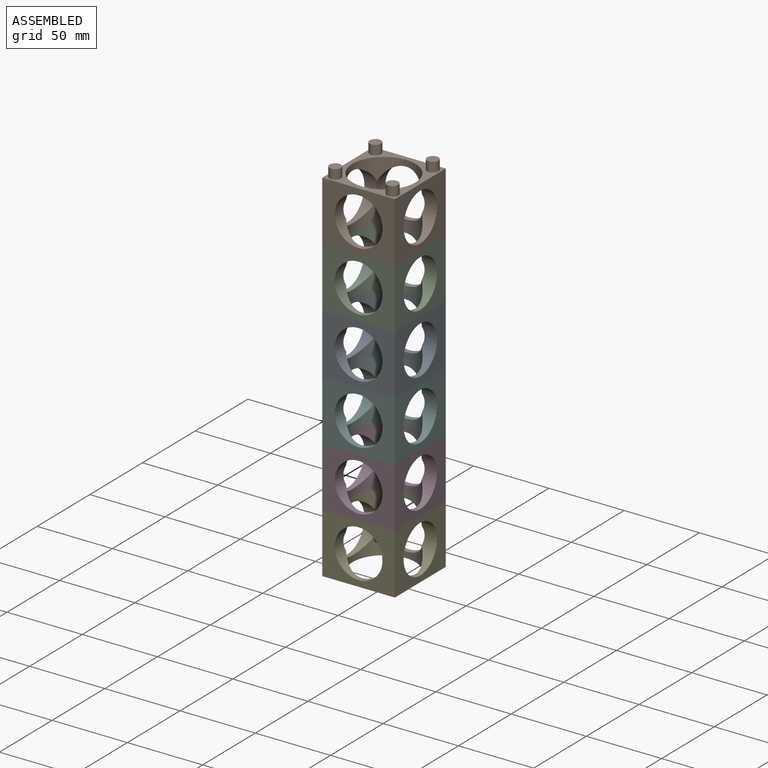
[diagram: assembled view]
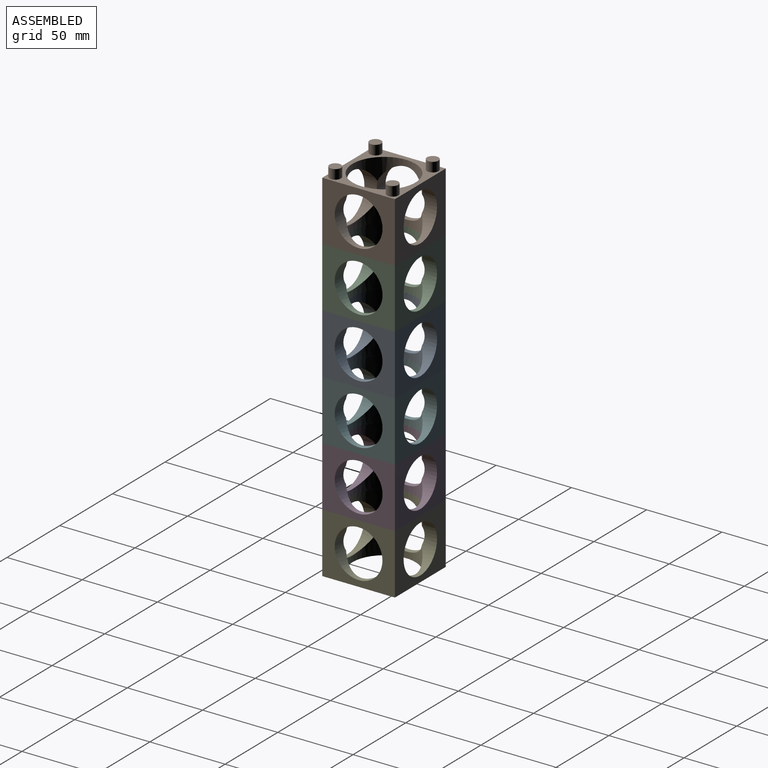
[diagram: assembled view, second angle]
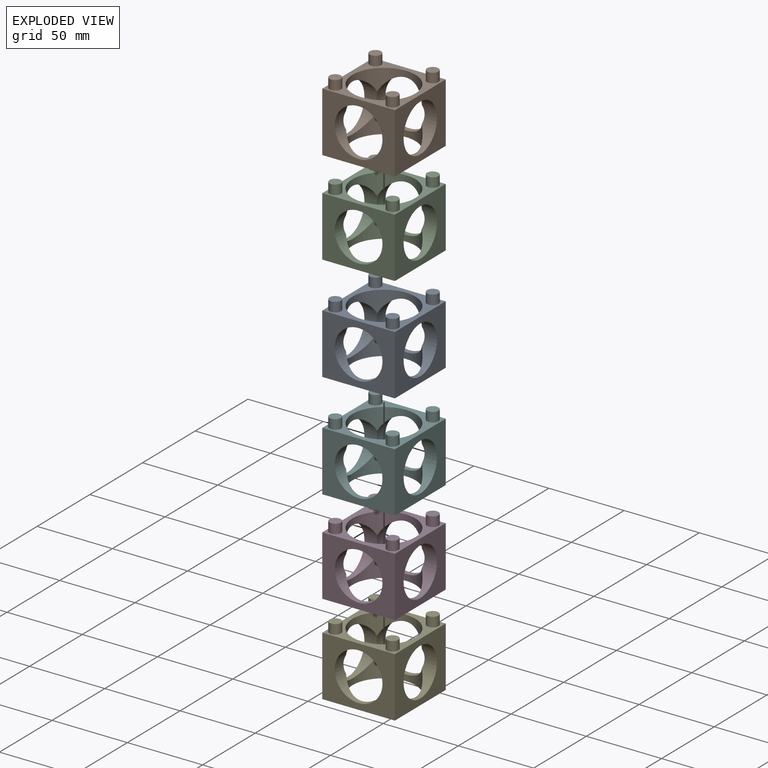
[diagram: exploded view]
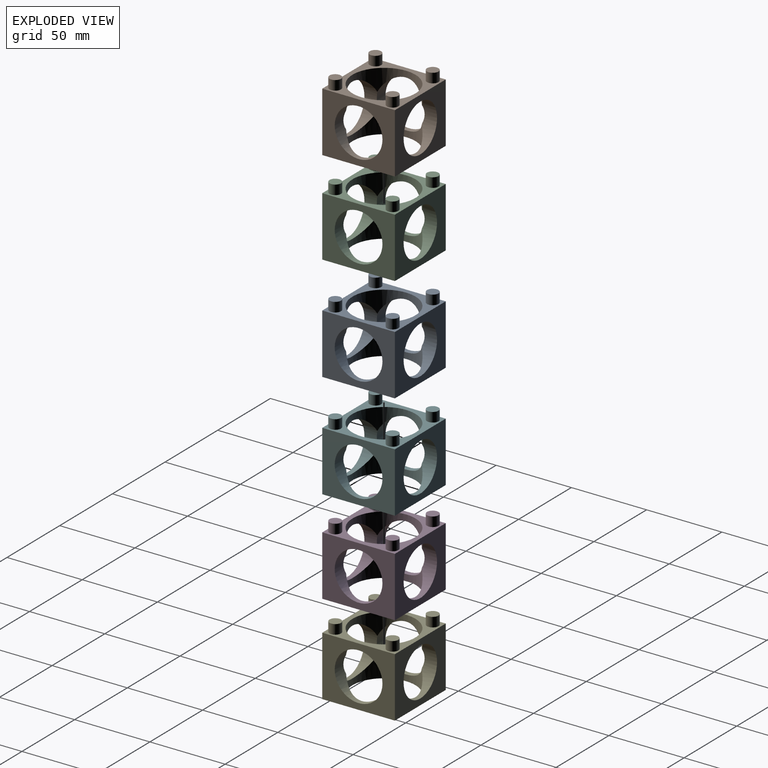
[diagram: exploded view, second angle]
ASSEMBLY  parts=6 mates=5
PART A: 28 faces, bbox 48.3x48.3x46.2 mm
  f0: cylinder r=20.96mm len=41.91mm, axis (0,0,-1), area 939.3mm2, adj f1,f2,f7,f10,f11
  f1: cylinder r=15.88mm len=31.75mm, axis (-1,0,0), area 626.7mm2, adj f0,f4,f9,f10,f11
  f2: cylinder r=15.88mm len=31.75mm, axis (-1,0,0), area 626.6mm2, adj f0,f6,f9,f10,f11
  f3: plane 48.26x39.88mm, normal (0,-1,0), area 1132.8mm2, adj f4,f6,f7,f8,f10
  f4: plane 48.26x39.88mm, normal (1,0,0), area 1132.8mm2, adj f1,f3,f5,f7,f8
  f5: plane 48.26x39.88mm, normal (0,1,0), area 1132.8mm2, adj f4,f6,f7,f8,f11
  f6: plane 48.26x39.88mm, normal (-1,0,0), area 1132.8mm2, adj f2,f3,f5,f7,f8
  f7: plane 48.26x48.26mm, normal (0,0,1), area 767.1mm2, adj f0,f3,f4,f5,f6,f12,f14,f16
  f8: plane 48.26x48.26mm, normal (0,0,-1), area 754.7mm2, adj f3,f4,f5,f6,f9,f20,f22,f24
  f9: cylinder r=20.96mm len=41.91mm, axis (0,0,-1), area 939.3mm2, adj f1,f2,f8,f10,f11
  f10: cylinder r=15.88mm len=31.75mm, axis (0,-1,0), area 626.7mm2, adj f0,f1,f2,f3,f9
  f11: cylinder r=15.88mm len=31.75mm, axis (0,-1,0), area 626.6mm2, adj f0,f1,f2,f5,f9
  f12: cylinder r=3.81mm len=7.62mm, axis (0,0,-1), area 152mm2, adj f7,f13
  f13: plane 7.62x7.62mm, normal (0,0,1), area 45.6mm2, adj f12
  f14: cylinder r=3.81mm len=7.62mm, axis (0,0,-1), area 152mm2, adj f7,f15
  f15: plane 7.62x7.62mm, normal (0,0,1), area 45.6mm2, adj f14
  f16: cylinder r=3.81mm len=7.62mm, axis (0,0,-1), area 152mm2, adj f7,f17
  f17: plane 7.62x7.62mm, normal (0,0,1), area 45.6mm2, adj f16
  f18: cylinder r=3.81mm len=7.62mm, axis (0,0,-1), area 152mm2, adj f7,f19
  f19: plane 7.62x7.62mm, normal (0,0,1), area 45.6mm2, adj f18
  f20: cylinder r=3.94mm len=7.87mm, axis (0,0,-1), area 157.1mm2, adj f8,f21
  f21: plane 7.87x7.87mm, normal (0,0,-1), area 48.7mm2, adj f20
  f22: cylinder r=3.94mm len=7.87mm, axis (0,0,-1), area 157.1mm2, adj f8,f23
  f23: plane 7.87x7.87mm, normal (0,0,-1), area 48.7mm2, adj f22
  f24: cylinder r=3.94mm len=7.87mm, axis (0,0,-1), area 157.1mm2, adj f8,f25
  f25: plane 7.87x7.87mm, normal (0,0,-1), area 48.7mm2, adj f24
  f26: cylinder r=3.94mm len=7.87mm, axis (0,0,-1), area 157.1mm2, adj f8,f27
  f27: plane 7.87x7.87mm, normal (0,0,-1), area 48.7mm2, adj f26
PART B: same geometry as A
PART C: same geometry as A
PART D: same geometry as A
PART E: same geometry as A
PART F: same geometry as A
PLACE A t=(233.64,-175.86,84.55)mm
PLACE B t=(233.64,-175.86,164.31)mm
PLACE C t=(233.64,-175.86,124.43)mm
PLACE D t=(233.64,-175.86,4.8)mm
PLACE E t=(233.64,-175.86,-35.08)mm
PLACE F t=(233.64,-175.86,44.67)mm
MATE fastened F.f12 <-> D.f12  axis (0,0,-1) through (214.59,-194.91,51.02)mm
MATE fastened B.f12 <-> C.f12  axis (0,0,-1) through (214.59,-194.91,170.66)mm
MATE fastened D.f12 <-> E.f12  axis (0,0,-1) through (214.59,-194.91,11.15)mm
MATE fastened C.f12 <-> A.f12  axis (0,0,-1) through (214.59,-194.91,130.78)mm
MATE fastened A.f12 <-> F.f12  axis (0,0,-1) through (214.59,-194.91,90.9)mm
